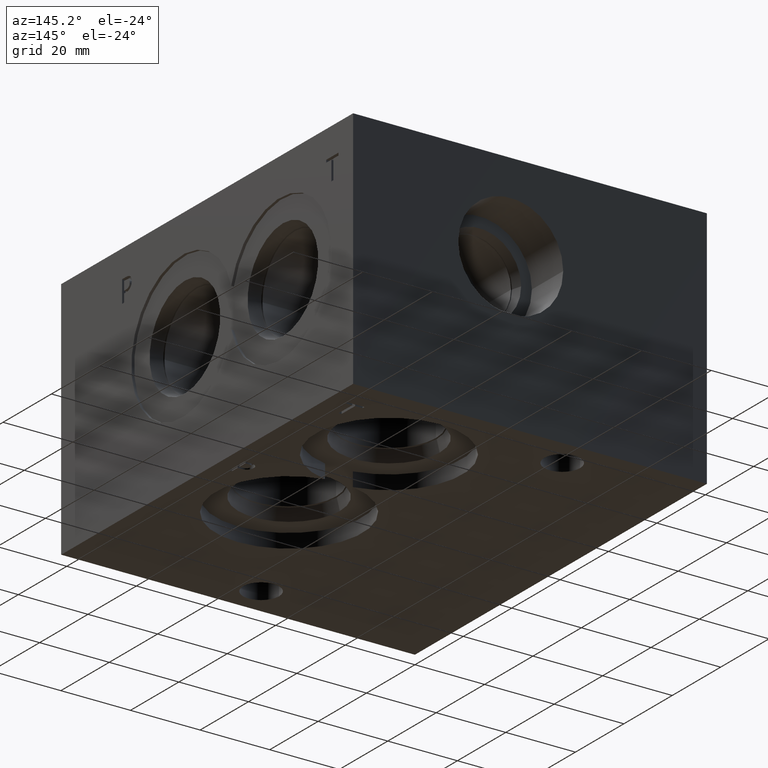
[diagram: clean part render]
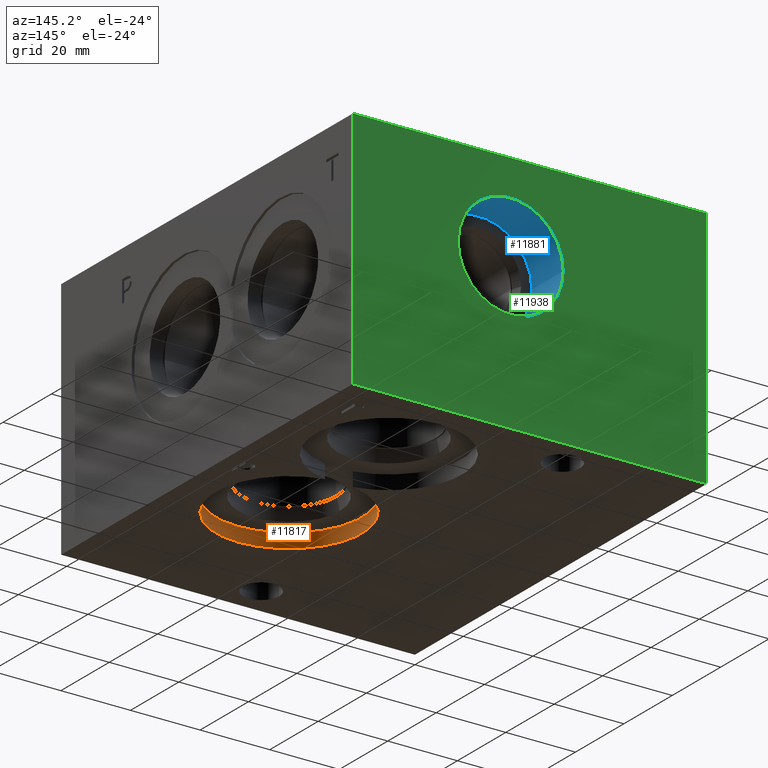
[diagram: same view with three faces highlighted in distinct colors, each labeled with its STEP entity id]
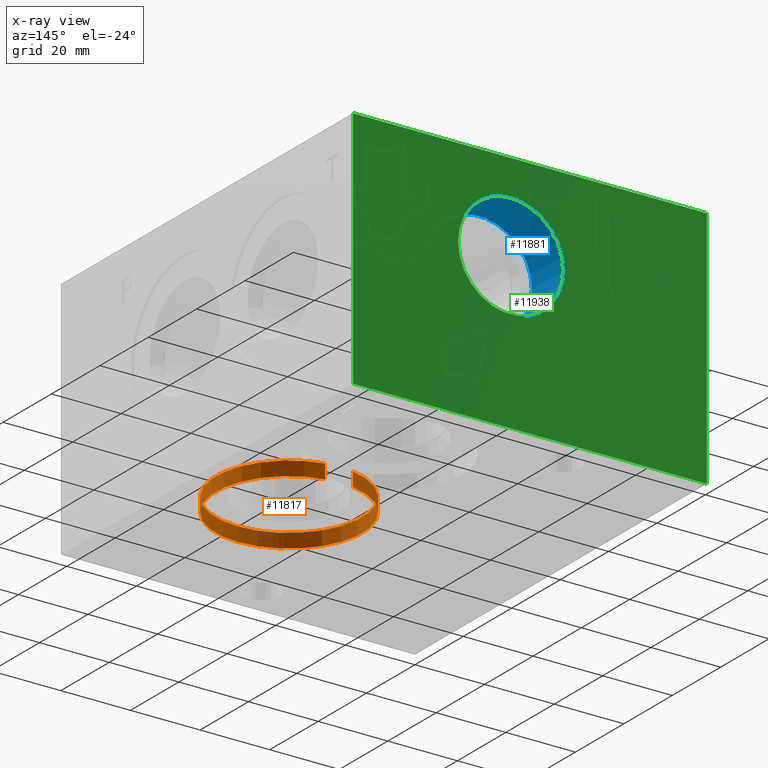
[diagram: x-ray of the same camera — body ghosted, the three highlighted faces saturated]
A machine part, auxiliary view with three faces highlighted in distinct colors.
The next image is the same camera in x-ray (body ghosted, the three faces saturated) — at least one of them is partly hidden behind the body in this view.
Their STEP definitions:

[orange] entity #11817 — the highlighted cylindrical surface (partial cylindrical patch) has radius 21.0185 mm, axis along (0, 0, 1).
#84=CYLINDRICAL_SURFACE('',#12358,21.0185);
#142=CIRCLE('',#11975,21.0185);
#195=CIRCLE('',#12359,21.0185);
#1394=FACE_OUTER_BOUND('',#2050,.T.);
#2050=EDGE_LOOP('',(#9874,#9875,#9876,#9877));
#3209=LINE('',#19780,#4314);
#3210=LINE('',#19783,#4315);
#4314=VECTOR('',#14423,10.);
#4315=VECTOR('',#14426,10.);
#4474=VERTEX_POINT('',#15503);
#4475=VERTEX_POINT('',#15504);
#5306=VERTEX_POINT('',#19779);
#5307=VERTEX_POINT('',#19781);
#5632=EDGE_CURVE('',#4475,#4474,#142,.T.);
#6871=EDGE_CURVE('',#5306,#4474,#3209,.T.);
#6873=EDGE_CURVE('',#4475,#5307,#3210,.T.);
#6914=EDGE_CURVE('',#5307,#5306,#195,.T.);
#9874=ORIENTED_EDGE('',*,*,#6871,.T.);
#9875=ORIENTED_EDGE('',*,*,#5632,.F.);
#9876=ORIENTED_EDGE('',*,*,#6873,.T.);
#9877=ORIENTED_EDGE('',*,*,#6914,.T.);
#11817=ADVANCED_FACE('',(#1394),#84,.F.);
#11975=AXIS2_PLACEMENT_3D('',#15506,#12784,#12785);
#12358=AXIS2_PLACEMENT_3D('',#19954,#14497,#14498);
#12359=AXIS2_PLACEMENT_3D('',#19955,#14499,#14500);
#12784=DIRECTION('center_axis',(0.,0.,1.));
#12785=DIRECTION('ref_axis',(1.,0.,0.));
#14423=DIRECTION('',(0.,0.,-1.));
#14426=DIRECTION('',(0.,0.,1.));
#14497=DIRECTION('center_axis',(0.,0.,1.));
#14498=DIRECTION('ref_axis',(6.12323399573677E-17,-1.,0.));
#14499=DIRECTION('center_axis',(0.,0.,1.));
#14500=DIRECTION('ref_axis',(1.,0.,0.));
#15503=CARTESIAN_POINT('',(75.4340343339049,71.4375,0.));
#15504=CARTESIAN_POINT('',(67.4663656660951,71.4375,0.));
#15506=CARTESIAN_POINT('Origin',(71.4502,50.8,0.));
#19779=CARTESIAN_POINT('',(75.4340343339049,71.4375,4.064));
#19780=CARTESIAN_POINT('',(75.4340343339049,71.4375,2.032));
#19781=CARTESIAN_POINT('',(67.4663656660951,71.4375,4.064));
#19783=CARTESIAN_POINT('',(67.4663656660951,71.4375,2.032));
#19954=CARTESIAN_POINT('Origin',(71.4502,50.8,2.032));
#19955=CARTESIAN_POINT('Origin',(71.4502,50.8,4.064));

[blue] entity #11881 — the highlighted cylindrical surface (bore or boss wall) has radius 15.08 mm, axis along (0, -1, 0).
#113=CYLINDRICAL_SURFACE('',#12520,15.08);
#293=CIRCLE('',#12521,15.08);
#294=CIRCLE('',#12522,15.08);
#295=CIRCLE('',#12523,15.08);
#296=CIRCLE('',#12524,15.08);
#1458=FACE_OUTER_BOUND('',#2126,.T.);
#2126=EDGE_LOOP('',(#10214,#10215,#10216,#10217,#10218,#10219));
#3269=LINE('',#20314,#4374);
#4374=VECTOR('',#14877,15.08);
#5438=VERTEX_POINT('',#20309);
#5439=VERTEX_POINT('',#20310);
#5440=VERTEX_POINT('',#20313);
#5441=VERTEX_POINT('',#20315);
#7066=EDGE_CURVE('',#5438,#5439,#293,.T.);
#7067=EDGE_CURVE('',#5439,#5438,#294,.T.);
#7068=EDGE_CURVE('',#5439,#5440,#3269,.T.);
#7069=EDGE_CURVE('',#5440,#5441,#295,.T.);
#7070=EDGE_CURVE('',#5441,#5440,#296,.T.);
#10214=ORIENTED_EDGE('',*,*,#7066,.F.);
#10215=ORIENTED_EDGE('',*,*,#7067,.F.);
#10216=ORIENTED_EDGE('',*,*,#7068,.T.);
#10217=ORIENTED_EDGE('',*,*,#7069,.T.);
#10218=ORIENTED_EDGE('',*,*,#7070,.T.);
#10219=ORIENTED_EDGE('',*,*,#7068,.F.);
#11881=ADVANCED_FACE('',(#1458),#113,.F.);
#12520=AXIS2_PLACEMENT_3D('',#20308,#14871,#14872);
#12521=AXIS2_PLACEMENT_3D('',#20311,#14873,#14874);
#12522=AXIS2_PLACEMENT_3D('',#20312,#14875,#14876);
#12523=AXIS2_PLACEMENT_3D('',#20316,#14878,#14879);
#12524=AXIS2_PLACEMENT_3D('',#20317,#14880,#14881);
#14871=DIRECTION('center_axis',(0.,-1.,0.));
#14872=DIRECTION('ref_axis',(1.,0.,0.));
#14873=DIRECTION('center_axis',(0.,-1.,0.));
#14874=DIRECTION('ref_axis',(1.,0.,0.));
#14875=DIRECTION('center_axis',(0.,-1.,0.));
#14876=DIRECTION('ref_axis',(1.,0.,0.));
#14877=DIRECTION('',(0.,-1.,0.));
#14878=DIRECTION('center_axis',(0.,-1.,0.));
#14879=DIRECTION('ref_axis',(1.,0.,0.));
#14880=DIRECTION('center_axis',(0.,-1.,0.));
#14881=DIRECTION('ref_axis',(1.,0.,0.));
#20308=CARTESIAN_POINT('Origin',(56.3372,114.173,44.45));
#20309=CARTESIAN_POINT('',(71.4172,120.65,44.45));
#20310=CARTESIAN_POINT('',(41.2572,120.65,44.45));
#20311=CARTESIAN_POINT('Origin',(56.3372,120.65,44.45));
#20312=CARTESIAN_POINT('Origin',(56.3372,120.65,44.45));
#20313=CARTESIAN_POINT('',(41.2572,107.696,44.45));
#20314=CARTESIAN_POINT('',(41.2572,114.173,44.45));
#20315=CARTESIAN_POINT('',(71.4172,107.696,44.45));
#20316=CARTESIAN_POINT('Origin',(56.3372,107.696,44.45));
#20317=CARTESIAN_POINT('Origin',(56.3372,107.696,44.45));

[green] entity #11938 — the highlighted planar face has unit normal (0, 1, 0).
#293=CIRCLE('',#12521,15.08);
#294=CIRCLE('',#12522,15.08);
#466=FACE_BOUND('',#2193,.T.);
#1515=FACE_OUTER_BOUND('',#2192,.T.);
#2192=EDGE_LOOP('',(#10493,#10494,#10495,#10496));
#2193=EDGE_LOOP('',(#10497,#10498));
#2270=LINE('',#15501,#3375);
#2304=LINE('',#15714,#3409);
#3168=LINE('',#19473,#4273);
#3316=LINE('',#20632,#4421);
#3375=VECTOR('',#12780,10.);
#3409=VECTOR('',#12842,10.);
#4273=VECTOR('',#14278,10.);
#4421=VECTOR('',#15238,10.);
#4472=VERTEX_POINT('',#15498);
#4473=VERTEX_POINT('',#15500);
#4510=VERTEX_POINT('',#15713);
#5247=VERTEX_POINT('',#19471);
#5438=VERTEX_POINT('',#20309);
#5439=VERTEX_POINT('',#20310);
#5629=EDGE_CURVE('',#4473,#4472,#2270,.T.);
#5683=EDGE_CURVE('',#4473,#4510,#2304,.T.);
#6787=EDGE_CURVE('',#4472,#5247,#3168,.T.);
#7066=EDGE_CURVE('',#5438,#5439,#293,.T.);
#7067=EDGE_CURVE('',#5439,#5438,#294,.T.);
#7215=EDGE_CURVE('',#4510,#5247,#3316,.T.);
#10493=ORIENTED_EDGE('',*,*,#5629,.T.);
#10494=ORIENTED_EDGE('',*,*,#6787,.T.);
#10495=ORIENTED_EDGE('',*,*,#7215,.F.);
#10496=ORIENTED_EDGE('',*,*,#5683,.F.);
#10497=ORIENTED_EDGE('',*,*,#7066,.T.);
#10498=ORIENTED_EDGE('',*,*,#7067,.T.);
#10887=PLANE('',#12679);
#11938=ADVANCED_FACE('',(#1515,#466),#10887,.T.);
#12521=AXIS2_PLACEMENT_3D('',#20311,#14873,#14874);
#12522=AXIS2_PLACEMENT_3D('',#20312,#14875,#14876);
#12679=AXIS2_PLACEMENT_3D('',#20631,#15236,#15237);
#12780=DIRECTION('',(-1.,0.,0.));
#12842=DIRECTION('',(0.,0.,1.));
#14278=DIRECTION('',(0.,0.,1.));
#14873=DIRECTION('center_axis',(0.,-1.,0.));
#14874=DIRECTION('ref_axis',(1.,0.,0.));
#14875=DIRECTION('center_axis',(0.,-1.,0.));
#14876=DIRECTION('ref_axis',(1.,0.,0.));
#15236=DIRECTION('center_axis',(0.,1.,0.));
#15237=DIRECTION('ref_axis',(-1.,0.,0.));
#15238=DIRECTION('',(-1.,0.,0.));
#15498=CARTESIAN_POINT('',(0.,120.65,0.));
#15500=CARTESIAN_POINT('',(101.6,120.65,0.));
#15501=CARTESIAN_POINT('',(101.6,120.65,0.));
#15713=CARTESIAN_POINT('',(101.6,120.65,69.85));
#15714=CARTESIAN_POINT('',(101.6,120.65,0.));
#19471=CARTESIAN_POINT('',(0.,120.65,69.85));
#19473=CARTESIAN_POINT('',(0.,120.65,0.));
#20309=CARTESIAN_POINT('',(71.4172,120.65,44.45));
#20310=CARTESIAN_POINT('',(41.2572,120.65,44.45));
#20311=CARTESIAN_POINT('Origin',(56.3372,120.65,44.45));
#20312=CARTESIAN_POINT('Origin',(56.3372,120.65,44.45));
#20631=CARTESIAN_POINT('Origin',(101.6,120.65,0.));
#20632=CARTESIAN_POINT('',(101.6,120.65,69.85));